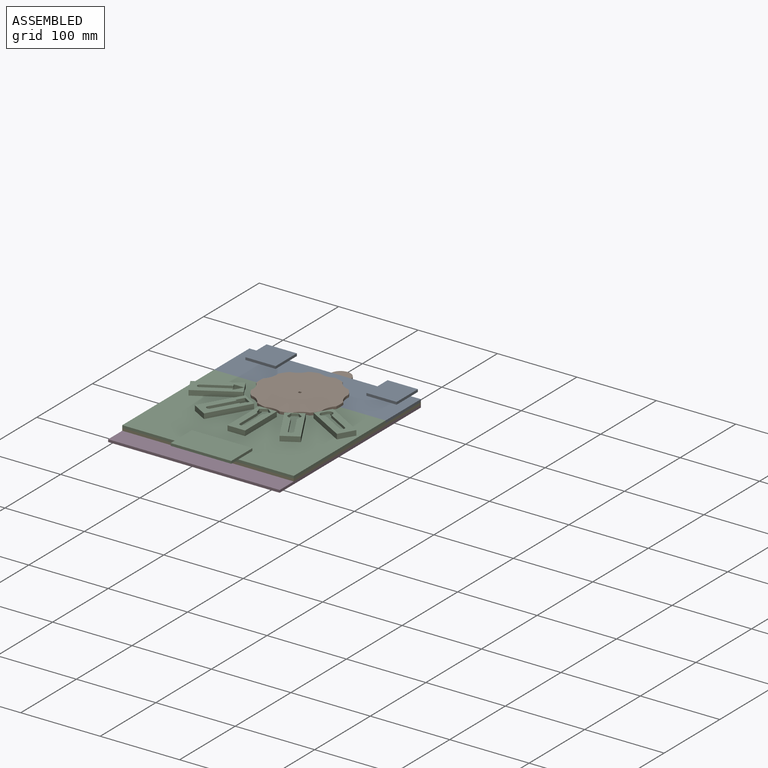
[diagram: assembled view]
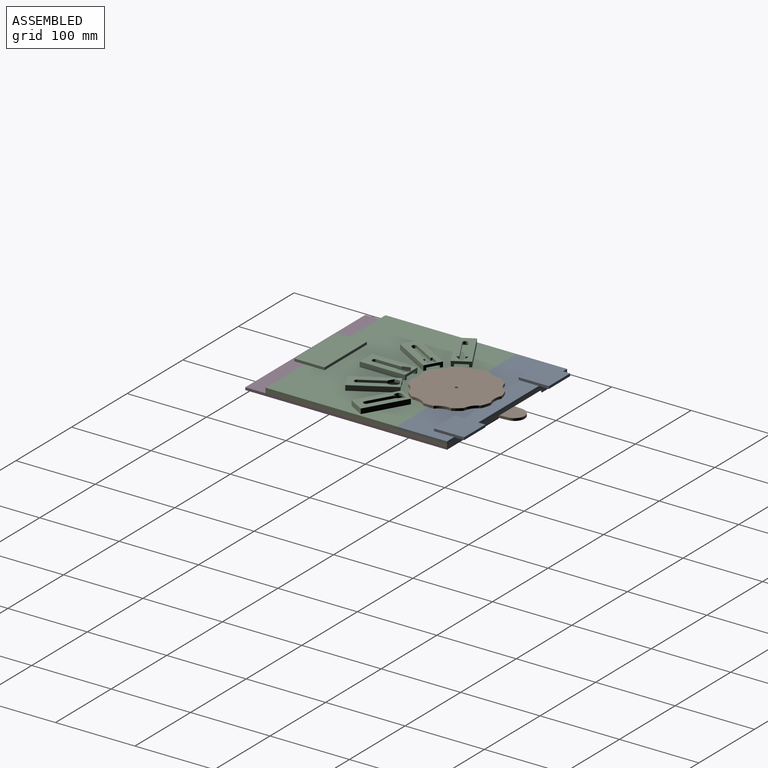
[diagram: assembled view, second angle]
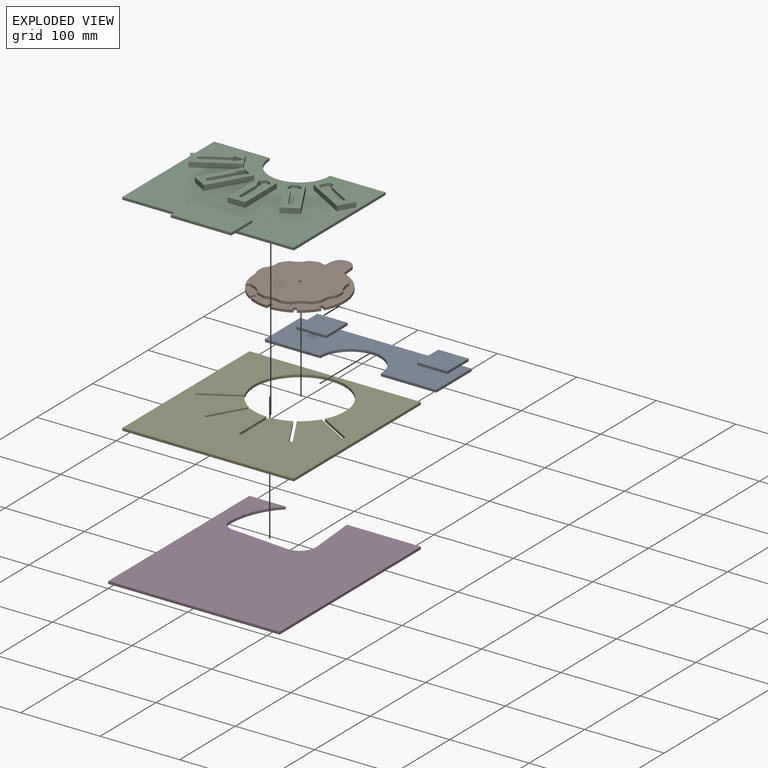
[diagram: exploded view]
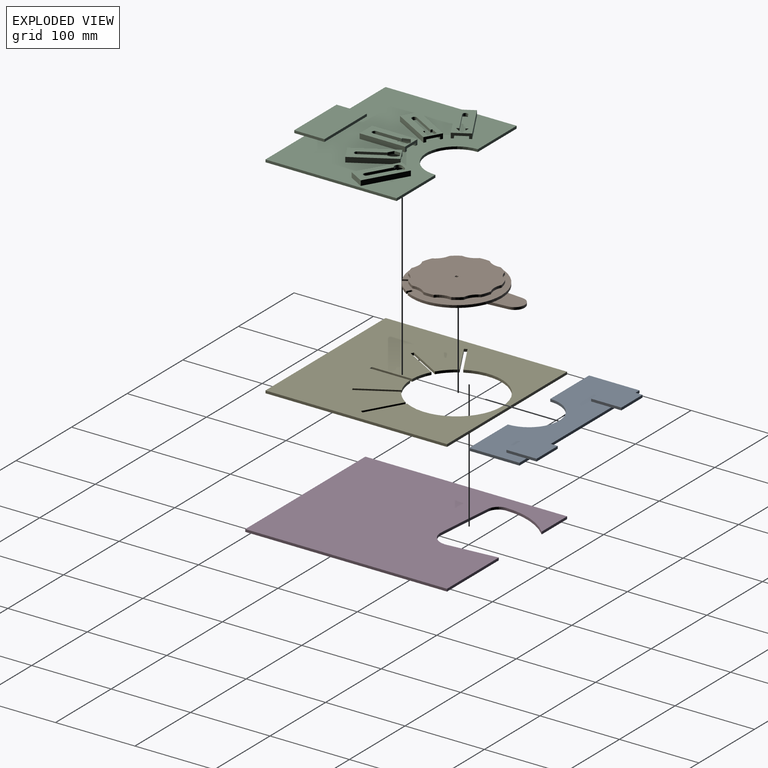
[diagram: exploded view, second angle]
ASSEMBLY  parts=5 mates=11
PART A: 20 faces, bbox 215.9x76.2x6.4 mm
  f0: plane 215.9x63.5mm, normal (0,0,1), area 9494mm2, adj f1,f2,f3,f4,f5,f6,f9,f10
  f1: cylinder r=38.1mm len=76.2mm, axis (0,0,-1), area 380mm2, adj f0,f2,f6,f7
  f2: plane 69.85x3.18mm, normal (0,-1,0), area 221.8mm2, adj f0,f1,f3,f7
  f3: plane 63.5x3.18mm, normal (1,0,0), area 201.6mm2, adj f0,f2,f4,f7
  f4: plane 215.9x3.18mm, normal (0,1,0), area 685.5mm2, adj f0,f3,f5,f7,f13,f19
  f5: plane 63.5x3.18mm, normal (-1,0,0), area 201.6mm2, adj f0,f4,f6,f7
  f6: plane 69.85x3.18mm, normal (0,-1,0), area 221.8mm2, adj f0,f1,f5,f7
  f7: plane 215.9x63.5mm, normal (0,0,-1), area 11429.5mm2, adj f1,f2,f3,f4,f5,f6
  f8: plane 38.1x3.18mm, normal (0,1,0), area 121mm2, adj f9,f11,f12,f13
  f9: plane 38.1x3.18mm, normal (-1,0,0), area 121mm2, adj f0,f8,f10,f12,f13
  f10: plane 38.1x3.18mm, normal (0,-1,0), area 121mm2, adj f0,f9,f11,f12
  f11: plane 38.1x3.18mm, normal (1,0,0), area 121mm2, adj f0,f8,f10,f12,f13
  f12: plane 38.1x38.1mm, normal (0,0,1), area 1451.6mm2, adj f8,f9,f10,f11
  f13: plane 38.1x12.7mm, normal (0,0,-1), area 483.9mm2, adj f4,f8,f9,f11
  f14: plane 38.1x3.18mm, normal (0,-1,0), area 121mm2, adj f0,f15,f17,f18
  f15: plane 38.1x3.18mm, normal (1,0,0), area 121mm2, adj f0,f14,f16,f18,f19
  f16: plane 38.1x3.18mm, normal (0,1,0), area 121mm2, adj f15,f17,f18,f19
  f17: plane 38.1x3.18mm, normal (-1,0,0), area 121mm2, adj f0,f14,f16,f18,f19
  f18: plane 38.1x38.1mm, normal (0,0,1), area 1451.6mm2, adj f14,f15,f16,f17
  f19: plane 38.1x12.7mm, normal (0,0,-1), area 483.9mm2, adj f4,f15,f16,f17
PART B: 55 faces, bbox 113x142.2x12.7 mm
  f0: plane 72.47x6.33mm, normal (1,0.09,0), area 231mm2, adj f1,f7,f8,f9,f31
  f1: cylinder r=12.7mm len=25.3mm, axis (0,0,-1), area 119.7mm2, adj f0,f2,f8,f9
  f2: plane 72.47x6.33mm, normal (-1,0.09,0), area 231mm2, adj f1,f7,f8,f9,f31
  f3: plane 12.7x3.23mm, normal (1,0,0), area 41mm2, adj f4,f6,f9,f53
  f4: plane 12.7x3.23mm, normal (0,-1,0), area 41mm2, adj f3,f5,f9,f53
  f5: plane 12.7x3.23mm, normal (-1,0,0), area 41mm2, adj f4,f6,f9,f53
  f6: plane 12.7x3.23mm, normal (0,1,0), area 41mm2, adj f3,f5,f9,f53
  f7: cylinder r=19.05mm len=38.1mm, axis (0,0,-1), area 200.5mm2, adj f0,f2,f9,f31
  f8: plane 31.06x28.7mm, normal (0,0,1), area 715.4mm2, adj f0,f1,f2,f10
  f9: plane 104.78x38.1mm, normal (0,0,-1), area 3140.3mm2, adj f0,f1,f2,f3,f4,f5,f6,f7
  f10: cylinder r=56.52mm len=113.03mm, axis (0,0,-1), area 739.5mm2, adj f8,f11,f29,f30,f31
  f11: plane 5.47x3.18mm, normal (0.5,-0.87,0), area 20.1mm2, adj f10,f12,f30,f31
  f12: plane 3.3x3.18mm, normal (-0.87,-0.5,0), area 12.1mm2, adj f11,f13,f30,f31
  f13: plane 5.47x3.18mm, normal (-0.5,0.87,0), area 20.1mm2, adj f12,f14,f30,f31
  f14: cylinder r=56.52mm len=18.07mm, axis (0,0,-1), area 81.9mm2, adj f13,f15,f30,f31
  f15: plane 5.47x3.18mm, normal (0.87,-0.5,0), area 20.1mm2, adj f14,f16,f30,f31
  f16: plane 3.3x3.18mm, normal (-0.5,-0.87,0), area 12.1mm2, adj f15,f17,f30,f31
  f17: plane 5.47x3.18mm, normal (-0.87,0.5,0), area 20.1mm2, adj f16,f18,f30,f31
  f18: cylinder r=56.52mm len=24.69mm, axis (0,0,-1), area 81.9mm2, adj f17,f19,f30,f31
  f19: plane 6.32x3.18mm, normal (1,0,0), area 20.1mm2, adj f18,f20,f30,f31
  f20: plane 3.81x3.18mm, normal (0,-1,0), area 12.1mm2, adj f19,f21,f30,f31
  f21: plane 6.32x3.18mm, normal (-1,0,0), area 20.1mm2, adj f20,f22,f30,f31
  f22: cylinder r=56.52mm len=24.69mm, axis (0,0,-1), area 81.9mm2, adj f21,f23,f30,f31
  f23: plane 5.47x3.18mm, normal (0.87,0.5,0), area 20.1mm2, adj f22,f24,f30,f31
  f24: plane 3.3x3.18mm, normal (0.5,-0.87,0), area 12.1mm2, adj f23,f25,f30,f31
  f25: plane 5.47x3.18mm, normal (-0.87,-0.5,0), area 20.1mm2, adj f24,f26,f30,f31
  f26: cylinder r=56.52mm len=18.07mm, axis (0,0,-1), area 81.9mm2, adj f25,f27,f30,f31
  f27: plane 5.47x3.18mm, normal (0.5,0.87,0), area 20.1mm2, adj f26,f28,f30,f31
  f28: plane 3.3x3.18mm, normal (0.87,-0.5,0), area 12.1mm2, adj f27,f29,f30,f31
  f29: plane 5.47x3.18mm, normal (-0.5,-0.87,0), area 20.1mm2, adj f10,f28,f30,f31
  f30: plane 113.03x113mm, normal (0,0,1), area 5503.7mm2, adj f10,f11,f12,f13,f14,f15,f16,f17
  f31: plane 113.03x111.15mm, normal (0,0,-1), area 7478mm2, adj f0,f2,f7,f10,f11,f12,f13,f14
  f32: cylinder r=37.46mm len=74.93mm, axis (0,0,-1), area 747.4mm2, adj f30,f54
  f33: cylinder r=21.09mm len=19.05mm, axis (0,0,-1), area 62.8mm2, adj f34,f52,f53,f54
  f34: cylinder r=50.8mm len=12.1mm, axis (0,0,-1), area 40.5mm2, adj f33,f35,f53,f54
  f35: cylinder r=21.09mm len=15.41mm, axis (0,0,-1), area 62.8mm2, adj f34,f36,f53,f54
  f36: cylinder r=50.8mm len=10.29mm, axis (0,0,-1), area 40.5mm2, adj f35,f37,f53,f54
  f37: cylinder r=21.09mm len=18.12mm, axis (0,0,-1), area 62.8mm2, adj f36,f38,f53,f54
  f38: cylinder r=50.8mm len=12.72mm, axis (0,0,-1), area 40.5mm2, adj f37,f39,f53,f54
  f39: cylinder r=21.09mm len=18.12mm, axis (0,0,-1), area 62.8mm2, adj f38,f40,f53,f54
  f40: cylinder r=50.8mm len=10.29mm, axis (0,0,-1), area 40.5mm2, adj f39,f41,f53,f54
  f41: cylinder r=21.09mm len=15.41mm, axis (0,0,-1), area 62.8mm2, adj f40,f42,f53,f54
  f42: cylinder r=50.8mm len=12.1mm, axis (0,0,-1), area 40.5mm2, adj f41,f43,f53,f54
  f43: cylinder r=21.09mm len=19.05mm, axis (0,0,-1), area 62.8mm2, adj f42,f44,f53,f54
  f44: cylinder r=50.8mm len=12.1mm, axis (0,0,-1), area 40.5mm2, adj f43,f45,f53,f54
  f45: cylinder r=21.09mm len=15.41mm, axis (0,0,-1), area 62.8mm2, adj f44,f46,f53,f54
  f46: cylinder r=50.8mm len=10.29mm, axis (0,0,-1), area 40.5mm2, adj f45,f47,f53,f54
  f47: cylinder r=21.09mm len=18.12mm, axis (0,0,-1), area 62.8mm2, adj f46,f48,f53,f54
  f48: cylinder r=50.8mm len=12.72mm, axis (0,0,-1), area 40.5mm2, adj f47,f49,f53,f54
  f49: cylinder r=21.09mm len=18.12mm, axis (0,0,-1), area 62.8mm2, adj f48,f50,f53,f54
  f50: cylinder r=50.8mm len=10.29mm, axis (0,0,-1), area 40.5mm2, adj f49,f51,f53,f54
  f51: cylinder r=21.09mm len=15.41mm, axis (0,0,-1), area 62.8mm2, adj f50,f52,f53,f54
  f52: cylinder r=50.8mm len=12.1mm, axis (0,0,-1), area 40.5mm2, adj f33,f51,f53,f54
  f53: plane 101.6x99.8mm, normal (0,0,1), area 7690.2mm2, adj f3,f4,f5,f6,f33,f34,f35,f36
  f54: plane 101.6x99.8mm, normal (0,0,-1), area 3291mm2, adj f32,f33,f34,f35,f36,f37,f38,f39
PART C: 99 faces, bbox 215.9x177.8x9.5 mm
  f0: plane 215.9x165.1mm, normal (0,0,1), area 29362.9mm2, adj f1,f2,f3,f4,f5,f6,f9,f10
  f1: plane 69.85x3.18mm, normal (0,1,0), area 221.8mm2, adj f0,f2,f6,f7
  f2: cylinder r=38.1mm len=76.2mm, axis (0,0,-1), area 380mm2, adj f0,f1,f3,f7
  f3: plane 69.85x3.18mm, normal (0,1,0), area 221.8mm2, adj f0,f2,f4,f7
  f4: plane 165.1x3.18mm, normal (-1,0,0), area 524.2mm2, adj f0,f3,f5,f7
  f5: plane 215.9x3.18mm, normal (0,-1,0), area 685.5mm2, adj f0,f4,f6,f7,f8
  f6: plane 165.1x3.18mm, normal (1,0,0), area 524.2mm2, adj f0,f1,f5,f7
  f7: plane 215.9x165.1mm, normal (0,0,-1), area 33364.9mm2, adj f1,f2,f3,f4,f5,f6
  f8: plane 76.2x12.7mm, normal (0,0,-1), area 967.7mm2, adj f5,f10,f11,f12
  f9: plane 76.2x3.18mm, normal (0,1,0), area 241.9mm2, adj f0,f10,f12,f13
  f10: plane 38.1x3.18mm, normal (-1,0,0), area 121mm2, adj f0,f8,f9,f11,f13
  f11: plane 76.2x3.18mm, normal (0,-1,0), area 241.9mm2, adj f8,f10,f12,f13
  f12: plane 38.1x3.18mm, normal (1,0,0), area 121mm2, adj f0,f8,f9,f11,f13
  f13: plane 76.2x38.1mm, normal (0,0,1), area 2903.2mm2, adj f9,f10,f11,f12
  f14: plane 46.74x26.99mm, normal (0.5,-0.87,0), area 171.4mm2, adj f0,f15,f20,f49
  f15: plane 19.25x11.11mm, normal (0.87,0.5,0), area 90.7mm2, adj f0,f14,f16,f18,f19,f49,f57
  f16: plane 49.49x28.58mm, normal (-0.5,0.87,0), area 362.9mm2, adj f0,f15,f17,f57
  f17: plane 19.25x11.11mm, normal (-0.87,-0.5,0), area 141.1mm2, adj f0,f16,f18,f57
  f18: plane 49.49x28.58mm, normal (0.5,-0.87,0), area 362.9mm2, adj f0,f15,f17,f57
  f19: plane 46.74x26.99mm, normal (-0.5,0.87,0), area 171.4mm2, adj f0,f15,f20,f49
  f20: plane 13.75x7.94mm, normal (0.87,0.5,0), area 50.4mm2, adj f0,f14,f19,f49
  f21: plane 46.74x26.99mm, normal (-0.87,0.5,0), area 171.4mm2, adj f0,f22,f24,f67
  f22: plane 13.75x7.94mm, normal (0.5,0.87,0), area 50.4mm2, adj f0,f21,f23,f67
  f23: plane 46.74x26.99mm, normal (0.87,-0.5,0), area 171.4mm2, adj f0,f22,f24,f67
  f24: plane 19.25x11.11mm, normal (0.5,0.87,0), area 90.7mm2, adj f0,f21,f23,f25,f27,f66,f67
  f25: plane 49.49x28.58mm, normal (-0.87,0.5,0), area 362.9mm2, adj f0,f24,f26,f66
  f26: plane 19.25x11.11mm, normal (-0.5,-0.87,0), area 141.1mm2, adj f0,f25,f27,f66
  f27: plane 49.49x28.58mm, normal (0.87,-0.5,0), area 362.9mm2, adj f0,f24,f26,f66
  f28: plane 53.98x3.18mm, normal (-1,0,0), area 171.4mm2, adj f0,f29,f31,f78
  f29: plane 15.88x3.18mm, normal (0,1,0), area 50.4mm2, adj f0,f28,f30,f78
  f30: plane 53.98x3.18mm, normal (1,0,0), area 171.4mm2, adj f0,f29,f31,f78
  f31: plane 22.23x6.35mm, normal (0,1,0), area 90.7mm2, adj f0,f28,f30,f32,f34,f77,f78
  f32: plane 57.15x6.35mm, normal (-1,0,0), area 362.9mm2, adj f0,f31,f33,f77
  f33: plane 22.23x6.35mm, normal (0,-1,0), area 141.1mm2, adj f0,f32,f34,f77
  f34: plane 57.15x6.35mm, normal (1,0,0), area 362.9mm2, adj f0,f31,f33,f77
  f35: plane 46.74x26.99mm, normal (-0.87,-0.5,0), area 171.4mm2, adj f0,f36,f38,f90
  f36: plane 13.75x7.94mm, normal (-0.5,0.87,0), area 50.4mm2, adj f0,f35,f37,f90
  f37: plane 46.74x26.99mm, normal (0.87,0.5,0), area 171.4mm2, adj f0,f36,f38,f90
  f38: plane 19.25x11.11mm, normal (-0.5,0.87,0), area 90.7mm2, adj f0,f35,f37,f39,f41,f89,f90
  f39: plane 49.49x28.58mm, normal (-0.87,-0.5,0), area 362.9mm2, adj f0,f38,f40,f89
  f40: plane 19.25x11.11mm, normal (0.5,-0.87,0), area 141.1mm2, adj f0,f39,f41,f89
  f41: plane 49.49x28.58mm, normal (0.87,0.5,0), area 362.9mm2, adj f0,f38,f40,f89
  f42: plane 46.74x26.99mm, normal (-0.5,-0.87,0), area 171.4mm2, adj f0,f43,f45,f98
  f43: plane 13.75x7.94mm, normal (-0.87,0.5,0), area 50.4mm2, adj f0,f42,f44,f98
  f44: plane 46.74x26.99mm, normal (0.5,0.87,0), area 171.4mm2, adj f0,f43,f45,f98
  f45: plane 19.25x11.11mm, normal (-0.87,0.5,0), area 90.7mm2, adj f0,f42,f44,f46,f48,f97,f98
  f46: plane 49.49x28.58mm, normal (-0.5,-0.87,0), area 362.9mm2, adj f0,f45,f47,f97
  f47: plane 19.25x11.11mm, normal (0.87,-0.5,0), area 141.1mm2, adj f0,f46,f48,f97
  f48: plane 49.49x28.58mm, normal (0.5,0.87,0), area 362.9mm2, adj f0,f45,f47,f97
  f49: plane 54.68x40.74mm, normal (0,0,-1), area 547.8mm2, adj f14,f15,f19,f20,f50,f51,f52,f53
  f50: cylinder r=3.17mm len=5.92mm, axis (0,0,-1), area 31.7mm2, adj f49,f51,f56,f57
  f51: plane 29.7x17.15mm, normal (0.5,-0.87,0), area 108.9mm2, adj f49,f50,f52,f57
  f52: plane 3.18x2.97mm, normal (0.87,0.5,0), area 10.9mm2, adj f49,f51,f53,f57
  f53: plane 13.2x3.18mm, normal (0,-1,0), area 41.9mm2, adj f49,f52,f54,f57
  f54: plane 11.43x6.6mm, normal (-0.87,0.5,0), area 41.9mm2, adj f49,f53,f55,f57
  f55: plane 3.18x2.97mm, normal (0.87,0.5,0), area 10.9mm2, adj f49,f54,f56,f57
  f56: plane 29.7x17.15mm, normal (-0.5,0.87,0), area 108.9mm2, adj f49,f50,f55,f57
  f57: plane 60.61x47.82mm, normal (0,0,1), area 961.2mm2, adj f15,f16,f17,f18,f50,f51,f52,f53
  f58: plane 28.33x16.36mm, normal (0.87,-0.5,0), area 103.9mm2, adj f59,f65,f66,f67
  f59: plane 3.18x1.92mm, normal (0.5,0.87,0), area 7mm2, adj f58,f60,f66,f67
  f60: plane 9.33x5.39mm, normal (0.87,-0.5,0), area 34.2mm2, adj f59,f61,f66,f67
  f61: plane 9.33x5.39mm, normal (-0.5,-0.87,0), area 34.2mm2, adj f60,f62,f66,f67
  f62: plane 9.33x5.39mm, normal (-0.87,0.5,0), area 34.2mm2, adj f61,f63,f66,f67
  f63: plane 3.18x1.92mm, normal (0.5,0.87,0), area 7mm2, adj f62,f64,f66,f67
  f64: plane 28.33x16.36mm, normal (-0.87,0.5,0), area 103.9mm2, adj f63,f65,f66,f67
  f65: cylinder r=3.17mm len=5.92mm, axis (0,0,-1), area 31.7mm2, adj f58,f64,f66,f67
  f66: plane 60.61x47.82mm, normal (0,0,1), area 930.5mm2, adj f24,f25,f26,f27,f58,f59,f60,f61
  f67: plane 54.68x40.74mm, normal (0,0,-1), area 517.2mm2, adj f21,f22,f23,f24,f58,f59,f60,f61
  f68: plane 31.94x3.18mm, normal (1,0,0), area 101.4mm2, adj f69,f76,f77,f78
  f69: plane 3.18x1.3mm, normal (0,1,0), area 4.1mm2, adj f68,f70,f77,f78
  f70: plane 8.52x3.18mm, normal (0.95,0.31,0), area 28.4mm2, adj f69,f71,f77,f78
  f71: plane 7.25x5.27mm, normal (0.59,-0.81,0), area 28.4mm2, adj f70,f72,f77,f78
  f72: plane 7.25x5.27mm, normal (-0.59,-0.81,0), area 28.4mm2, adj f71,f73,f77,f78
  f73: plane 8.52x3.18mm, normal (-0.95,0.31,0), area 28.4mm2, adj f72,f74,f77,f78
  f74: plane 3.18x1.3mm, normal (0,1,0), area 4.1mm2, adj f73,f75,f77,f78
  f75: plane 31.94x3.18mm, normal (-1,0,0), area 101.4mm2, adj f74,f76,f77,f78
  f76: cylinder r=3.17mm len=6.35mm, axis (0,0,-1), area 31.7mm2, adj f68,f75,f77,f78
  f77: plane 57.15x22.23mm, normal (0,0,1), area 913.5mm2, adj f31,f32,f33,f34,f68,f69,f70,f71
  f78: plane 53.98x15.88mm, normal (0,0,-1), area 500.2mm2, adj f28,f29,f30,f31,f68,f69,f70,f71
  f79: plane 7.62x3.18mm, normal (1,0,0), area 24.2mm2, adj f80,f88,f89,f90
  f80: plane 6.6x3.81mm, normal (0.5,-0.87,0), area 24.2mm2, adj f79,f81,f89,f90
  f81: plane 6.6x3.81mm, normal (-0.5,-0.87,0), area 24.2mm2, adj f80,f82,f89,f90
  f82: plane 7.62x3.18mm, normal (-1,0,0), area 24.2mm2, adj f81,f83,f89,f90
  f83: plane 3.18x0.55mm, normal (-0.5,0.87,0), area 2mm2, adj f82,f84,f89,f90
  f84: plane 27.28x15.75mm, normal (-0.87,-0.5,0), area 100mm2, adj f83,f85,f89,f90
  f85: cylinder r=3.17mm len=5.92mm, axis (0,0,-1), area 31.7mm2, adj f84,f86,f89,f90
  f86: plane 27.28x15.75mm, normal (0.87,0.5,0), area 100mm2, adj f85,f87,f89,f90
  f87: plane 3.18x0.55mm, normal (-0.5,0.87,0), area 2mm2, adj f86,f88,f89,f90
  f88: plane 6.6x3.81mm, normal (0.5,0.87,0), area 24.2mm2, adj f79,f87,f89,f90
  f89: plane 60.61x47.82mm, normal (0,0,1), area 903.4mm2, adj f38,f39,f40,f41,f79,f80,f81,f82
  f90: plane 54.68x40.74mm, normal (0,0,-1), area 490.1mm2, adj f35,f36,f37,f38,f79,f80,f81,f82
  f91: cylinder r=3.17mm len=5.92mm, axis (0,0,-1), area 31.7mm2, adj f92,f96,f97,f98
  f92: plane 28.91x16.69mm, normal (0.5,0.87,0), area 106mm2, adj f91,f93,f97,f98
  f93: cylinder r=4.76mm len=8.53mm, axis (0,0,-1), area 45.5mm2, adj f92,f94,f97,f98
  f94: plane 4.4x3.18mm, normal (0.87,-0.5,0), area 16.1mm2, adj f93,f95,f97,f98
  f95: cylinder r=4.76mm len=8.89mm, axis (0,0,-1), area 45.5mm2, adj f94,f96,f97,f98
  f96: plane 28.91x16.69mm, normal (-0.5,-0.87,0), area 106mm2, adj f91,f95,f97,f98
  f97: plane 60.61x47.82mm, normal (0,0,1), area 923mm2, adj f45,f46,f47,f48,f91,f92,f93,f94
  f98: plane 54.68x40.74mm, normal (0,0,-1), area 509.7mm2, adj f42,f43,f44,f45,f91,f92,f93,f94
PART D: 12 faces, bbox 215.9x254x3.2 mm
  f0: plane 93.1x3.18mm, normal (0,1,0), area 295.6mm2, adj f1,f9,f10,f11
  f1: plane 61.73x5.39mm, normal (-1,-0.09,0), area 196.7mm2, adj f0,f2,f10,f11
  f2: cylinder r=20.32mm len=22.09mm, axis (0,0,-1), area 112.6mm2, adj f1,f3,f10,f11
  f3: plane 74.38x6.49mm, normal (0.09,1,0), area 237mm2, adj f2,f4,f10,f11
  f4: cylinder r=13.97mm len=13.95mm, axis (0,0,-1), area 65.9mm2, adj f3,f5,f10,f11
  f5: cylinder r=88.9mm len=63.3mm, axis (0,0,-1), area 223.9mm2, adj f4,f6,f10,f11
  f6: plane 45.73x3.18mm, normal (0,1,0), area 145.2mm2, adj f5,f7,f10,f11
  f7: plane 254x3.18mm, normal (-1,0,0), area 806.5mm2, adj f6,f8,f10,f11
  f8: plane 215.9x3.18mm, normal (0,-1,0), area 685.5mm2, adj f7,f9,f10,f11
  f9: plane 254x3.18mm, normal (1,0,0), area 806.5mm2, adj f0,f8,f10,f11
  f10: plane 254x215.9mm, normal (0,0,1), area 46841.5mm2, adj f0,f1,f2,f3,f4,f5,f6,f7
  f11: plane 254x215.9mm, normal (0,0,-1), area 46841.5mm2, adj f0,f1,f2,f3,f4,f5,f6,f7
PART E: 26 faces, bbox 215.9x228.6x3.2 mm
  f0: plane 215.9x3.18mm, normal (0,1,0), area 685.5mm2, adj f1,f23,f24,f25
  f1: plane 228.6x3.18mm, normal (-1,0,0), area 725.8mm2, adj f0,f2,f24,f25
  f2: plane 215.9x3.18mm, normal (0,-1,0), area 685.5mm2, adj f1,f23,f24,f25
  f3: cylinder r=57.15mm len=114.3mm, axis (0,0,-1), area 748mm2, adj f4,f22,f24,f25
  f4: plane 44.02x25.42mm, normal (-0.5,-0.87,0), area 161.4mm2, adj f3,f5,f24,f25
  f5: plane 3.3x3.18mm, normal (-0.87,0.5,0), area 12.1mm2, adj f4,f6,f24,f25
  f6: plane 44.02x25.42mm, normal (0.5,0.87,0), area 161.4mm2, adj f5,f7,f24,f25
  f7: cylinder r=57.15mm len=18.3mm, axis (0,0,-1), area 82.9mm2, adj f6,f8,f24,f25
  f8: plane 44.02x25.42mm, normal (-0.87,-0.5,0), area 161.4mm2, adj f7,f9,f24,f25
  f9: plane 3.3x3.18mm, normal (-0.5,0.87,0), area 12.1mm2, adj f8,f10,f24,f25
  f10: plane 44.02x25.42mm, normal (0.87,0.5,0), area 161.4mm2, adj f9,f11,f24,f25
  f11: cylinder r=57.15mm len=25mm, axis (0,0,-1), area 82.9mm2, adj f10,f12,f24,f25
  f12: plane 50.83x3.18mm, normal (-1,0,0), area 161.4mm2, adj f11,f13,f24,f25
  f13: plane 3.81x3.18mm, normal (0,1,0), area 12.1mm2, adj f12,f14,f24,f25
  f14: plane 50.83x3.18mm, normal (1,0,0), area 161.4mm2, adj f13,f15,f24,f25
  f15: cylinder r=57.15mm len=25mm, axis (0,0,-1), area 82.9mm2, adj f14,f16,f24,f25
  f16: plane 44.02x25.42mm, normal (-0.87,0.5,0), area 161.4mm2, adj f15,f17,f24,f25
  f17: plane 3.3x3.18mm, normal (0.5,0.87,0), area 12.1mm2, adj f16,f18,f24,f25
  f18: plane 44.02x25.42mm, normal (0.87,-0.5,0), area 161.4mm2, adj f17,f19,f24,f25
  f19: cylinder r=57.15mm len=18.3mm, axis (0,0,-1), area 82.9mm2, adj f18,f20,f24,f25
  f20: plane 44.02x25.42mm, normal (-0.5,0.87,0), area 161.4mm2, adj f19,f21,f24,f25
  f21: plane 3.3x3.18mm, normal (0.87,0.5,0), area 12.1mm2, adj f20,f22,f24,f25
  f22: plane 44.02x25.42mm, normal (0.5,-0.87,0), area 161.4mm2, adj f3,f21,f24,f25
  f23: plane 228.6x3.18mm, normal (1,0,0), area 725.8mm2, adj f0,f2,f24,f25
  f24: plane 228.6x215.9mm, normal (0,0,1), area 38126mm2, adj f0,f1,f2,f3,f4,f5,f6,f7
  f25: plane 228.6x215.9mm, normal (0,0,-1), area 38126mm2, adj f0,f1,f2,f3,f4,f5,f6,f7
PLACE A t=(107.95,139.7,6.35)mm
PLACE B rot(axis=(0,0,1),0deg) t=(107.95,190.5,0)mm
PLACE C t=(107.95,139.7,6.35)mm
PLACE D t=(107.95,127,0)mm
PLACE E t=(107.95,139.7,3.18)mm
MATE planar C.f4 <-> E.f1  axis (-1,0,0) through (0,107.95,7.94)mm
MATE revolute B.f10 <-> E.f19  axis (0,0,-1) through (107.95,190.5,3.18)mm
MATE planar E.f25 <-> D.f10  axis (0,0,-1) through (107.95,126.3,3.18)mm
MATE planar E.f2 <-> C.f5  axis (0,-1,0) through (107.95,25.4,4.76)mm
MATE planar B.f7 <-> D.f11  axis (0,0,-1) through (107.95,190.5,0)mm
MATE planar A.f4 <-> E.f0  axis (0,1,0) through (107.95,254,7.94)mm
MATE planar E.f1 <-> D.f7  axis (-1,0,0) through (0,139.7,4.76)mm
MATE planar D.f0 <-> E.f0  axis (0,1,0) through (169.35,254,1.59)mm
MATE planar C.f7 <-> E.f24  axis (0,0,-1) through (107.95,103.41,6.35)mm
MATE planar E.f24 <-> A.f7  axis (0,0,1) through (107.95,126.3,6.35)mm
MATE planar A.f5 <-> E.f1  axis (-1,0,0) through (0,222.25,7.94)mm
